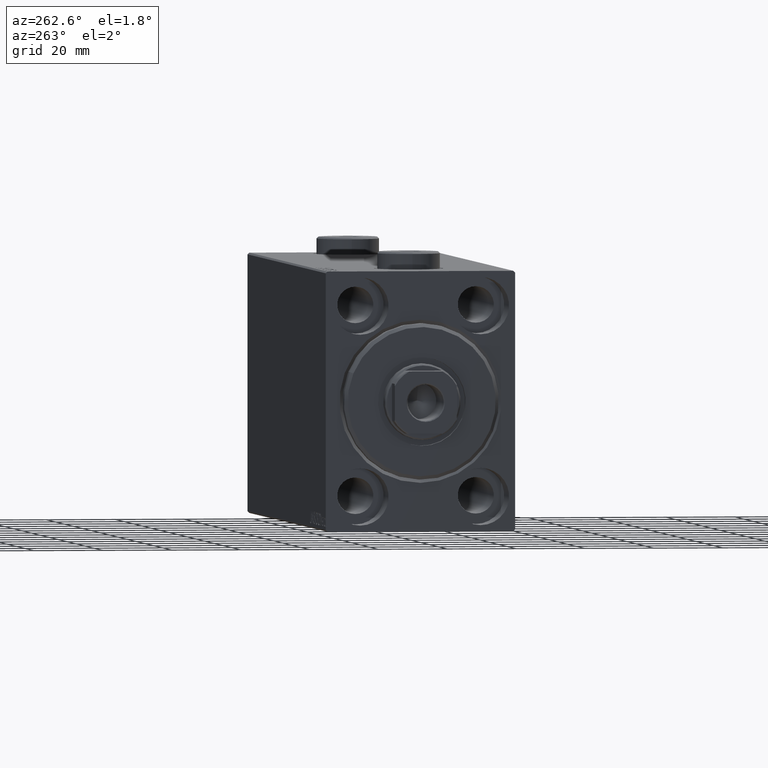
[diagram: clean part render]
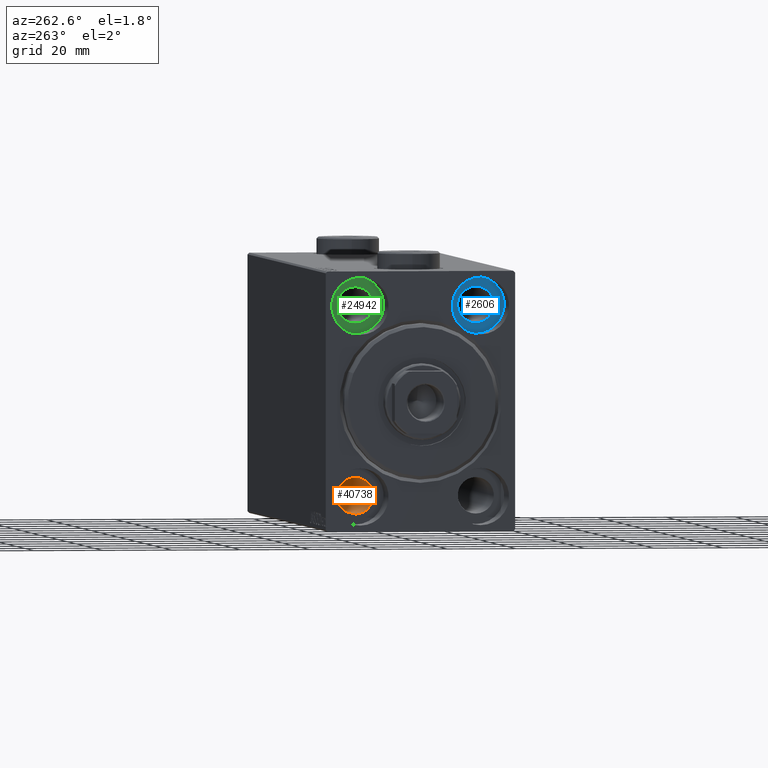
[diagram: same view with three faces highlighted in distinct colors, each labeled with its STEP entity id]
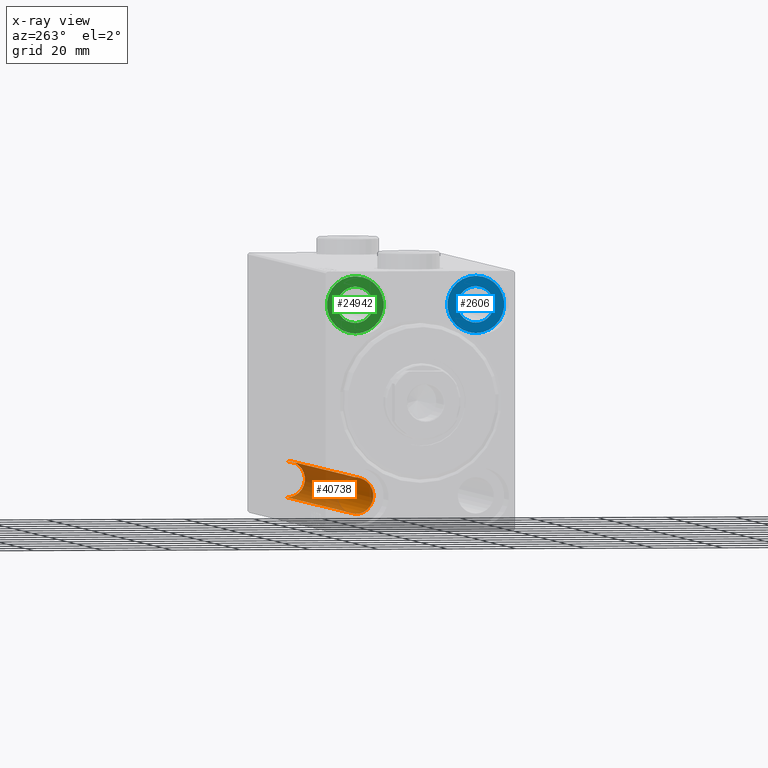
[diagram: x-ray of the same camera — body ghosted, the three highlighted faces saturated]
A machine part, auxiliary view with three faces highlighted in distinct colors.
The next image is the same camera in x-ray (body ghosted, the three faces saturated) — at least one of them is partly hidden behind the body in this view.
Their STEP definitions:

[orange] entity #40738 — the highlighted cylindrical surface (edge-blend (fillet) strip) has radius 5.25 mm, axis along (-1, -0, -0).
#4 = DIRECTION ( 'NONE',  ( -1.000000000000000000, -0.000000000000000000, -0.000000000000000000 ) ) ;
#726 = CARTESIAN_POINT ( 'NONE',  ( 11.00000000000001066, 17.49999999999999645, -22.25000000000000355 ) ) ;
#1457 = LINE ( 'NONE', #38930, #37201 ) ;
#2644 = CARTESIAN_POINT ( 'NONE',  ( 11.00000000000001066, 17.49999999999999645, -32.75000000000000000 ) ) ;
#3900 = ORIENTED_EDGE ( 'NONE', *, *, #29488, .F. ) ;
#6885 = DIRECTION ( 'NONE',  ( 0.000000000000000000, 0.000000000000000000, -1.000000000000000000 ) ) ;
#7633 = DIRECTION ( 'NONE',  ( -1.000000000000000000, -0.000000000000000000, -0.000000000000000000 ) ) ;
#8367 = DIRECTION ( 'NONE',  ( -1.000000000000000000, -0.000000000000000000, -0.000000000000000000 ) ) ;
#8910 = EDGE_CURVE ( 'NONE', #36445, #21088, #41424, .T. ) ;
#9983 = EDGE_CURVE ( 'NONE', #36445, #14713, #42994, .T. ) ;
#11016 = CARTESIAN_POINT ( 'NONE',  ( 11.00000000000001066, 17.49999999999999645, -27.50000000000000355 ) ) ;
#12563 = DIRECTION ( 'NONE',  ( 0.000000000000000000, 0.000000000000000000, 1.000000000000000000 ) ) ;
#12732 = CYLINDRICAL_SURFACE ( 'NONE', #44786, 5.250000000000000888 ) ;
#14713 = VERTEX_POINT ( 'NONE', #23112 ) ;
#15472 = DIRECTION ( 'NONE',  ( 0.000000000000000000, 0.000000000000000000, 1.000000000000000000 ) ) ;
#18954 = DIRECTION ( 'NONE',  ( -1.000000000000000000, 0.000000000000000000, 0.000000000000000000 ) ) ;
#19322 = ORIENTED_EDGE ( 'NONE', *, *, #9983, .F. ) ;
#19414 = CARTESIAN_POINT ( 'NONE',  ( 163.9999999999999716, 17.49999999999999645, -32.75000000000000000 ) ) ;
#21088 = VERTEX_POINT ( 'NONE', #2644 ) ;
#21095 = AXIS2_PLACEMENT_3D ( 'NONE', #21488, #4, #6885 ) ;
#21488 = CARTESIAN_POINT ( 'NONE',  ( 163.9999999999999716, 17.49999999999999645, -27.50000000000000355 ) ) ;
#21887 = CIRCLE ( 'NONE', #37208, 5.250000000000000888 ) ;
#23112 = CARTESIAN_POINT ( 'NONE',  ( 163.9999999999999716, 17.49999999999999645, -22.25000000000000355 ) ) ;
#24728 = VECTOR ( 'NONE', #38002, 1000.000000000000000 ) ;
#25199 = EDGE_CURVE ( 'NONE', #21088, #25770, #21887, .T. ) ;
#25490 = EDGE_LOOP ( 'NONE', ( #19322, #30821, #35459, #3900 ) ) ;
#25770 = VERTEX_POINT ( 'NONE', #726 ) ;
#26666 = CARTESIAN_POINT ( 'NONE',  ( 175.0000000000000000, 17.49999999999999645, -27.50000000000000355 ) ) ;
#29403 = FACE_OUTER_BOUND ( 'NONE', #25490, .T. ) ;
#29488 = EDGE_CURVE ( 'NONE', #14713, #25770, #1457, .T. ) ;
#30821 = ORIENTED_EDGE ( 'NONE', *, *, #8910, .T. ) ;
#33277 = CARTESIAN_POINT ( 'NONE',  ( 175.0000000000000000, 17.49999999999999645, -32.75000000000000000 ) ) ;
#35459 = ORIENTED_EDGE ( 'NONE', *, *, #25199, .T. ) ;
#36445 = VERTEX_POINT ( 'NONE', #19414 ) ;
#37201 = VECTOR ( 'NONE', #7633, 1000.000000000000000 ) ;
#37208 = AXIS2_PLACEMENT_3D ( 'NONE', #11016, #18954, #12563 ) ;
#38002 = DIRECTION ( 'NONE',  ( -1.000000000000000000, -0.000000000000000000, -0.000000000000000000 ) ) ;
#38930 = CARTESIAN_POINT ( 'NONE',  ( 175.0000000000000000, 17.49999999999999645, -22.25000000000000355 ) ) ;
#40738 = ADVANCED_FACE ( 'NONE', ( #29403 ), #12732, .F. ) ;
#41424 = LINE ( 'NONE', #33277, #24728 ) ;
#42994 = CIRCLE ( 'NONE', #21095, 5.249999999999997335 ) ;
#44786 = AXIS2_PLACEMENT_3D ( 'NONE', #26666, #8367, #15472 ) ;

[blue] entity #2606 — the highlighted planar face has unit normal (-1, 0, 0).
#391 = VERTEX_POINT ( 'NONE', #3207 ) ;
#1510 = DIRECTION ( 'NONE',  ( 0.000000000000000000, 0.000000000000000000, 1.000000000000000000 ) ) ;
#2510 = VERTEX_POINT ( 'NONE', #14014 ) ;
#2606 = ADVANCED_FACE ( 'NONE', ( #36369, #25194 ), #43001, .T. ) ;
#2971 = ORIENTED_EDGE ( 'NONE', *, *, #13760, .T. ) ;
#3207 = CARTESIAN_POINT ( 'NONE',  ( 11.00000000000001066, -17.49999999999999645, 22.25000000000000000 ) ) ;
#4398 = CARTESIAN_POINT ( 'NONE',  ( 11.00000000000000000, 0.000000000000000000, 0.000000000000000000 ) ) ;
#6051 = AXIS2_PLACEMENT_3D ( 'NONE', #34506, #38824, #10522 ) ;
#6069 = DIRECTION ( 'NONE',  ( 0.000000000000000000, 0.000000000000000000, 1.000000000000000000 ) ) ;
#7545 = EDGE_CURVE ( 'NONE', #36222, #2510, #10184, .T. ) ;
#8007 = ORIENTED_EDGE ( 'NONE', *, *, #28384, .F. ) ;
#10184 = CIRCLE ( 'NONE', #13845, 8.249999999999992895 ) ;
#10522 = DIRECTION ( 'NONE',  ( 0.000000000000000000, 0.000000000000000000, 1.000000000000000000 ) ) ;
#13760 = EDGE_CURVE ( 'NONE', #2510, #36222, #15383, .T. ) ;
#13845 = AXIS2_PLACEMENT_3D ( 'NONE', #18883, #29840, #1510 ) ;
#14014 = CARTESIAN_POINT ( 'NONE',  ( 11.00000000000000000, -17.49999999999999645, 35.74999999999999289 ) ) ;
#14049 = CARTESIAN_POINT ( 'NONE',  ( 11.00000000000001066, -17.49999999999999645, 27.49999999999999645 ) ) ;
#15383 = CIRCLE ( 'NONE', #20468, 8.249999999999992895 ) ;
#15646 = CIRCLE ( 'NONE', #6051, 5.249999999999997335 ) ;
#15721 = ORIENTED_EDGE ( 'NONE', *, *, #7545, .T. ) ;
#16732 = EDGE_LOOP ( 'NONE', ( #2971, #15721 ) ) ;
#16805 = DIRECTION ( 'NONE',  ( -1.000000000000000000, 0.000000000000000000, 0.000000000000000000 ) ) ;
#17294 = CARTESIAN_POINT ( 'NONE',  ( 11.00000000000001066, -17.49999999999999645, 32.74999999999999289 ) ) ;
#18883 = CARTESIAN_POINT ( 'NONE',  ( 11.00000000000000000, -17.49999999999999645, 27.49999999999999645 ) ) ;
#19766 = ORIENTED_EDGE ( 'NONE', *, *, #24071, .F. ) ;
#20449 = DIRECTION ( 'NONE',  ( -1.000000000000000000, 0.000000000000000000, 0.000000000000000000 ) ) ;
#20468 = AXIS2_PLACEMENT_3D ( 'NONE', #24323, #20449, #6069 ) ;
#22438 = DIRECTION ( 'NONE',  ( 0.000000000000000000, 0.000000000000000000, 1.000000000000000000 ) ) ;
#23886 = DIRECTION ( 'NONE',  ( 0.000000000000000000, 0.000000000000000000, 1.000000000000000000 ) ) ;
#23919 = EDGE_LOOP ( 'NONE', ( #19766, #8007 ) ) ;
#24071 = EDGE_CURVE ( 'NONE', #33183, #391, #15646, .T. ) ;
#24323 = CARTESIAN_POINT ( 'NONE',  ( 11.00000000000000000, -17.49999999999999645, 27.49999999999999645 ) ) ;
#25194 = FACE_OUTER_BOUND ( 'NONE', #16732, .T. ) ;
#27573 = AXIS2_PLACEMENT_3D ( 'NONE', #4398, #39581, #22438 ) ;
#28384 = EDGE_CURVE ( 'NONE', #391, #33183, #29132, .T. ) ;
#29132 = CIRCLE ( 'NONE', #35677, 5.249999999999997335 ) ;
#29840 = DIRECTION ( 'NONE',  ( -1.000000000000000000, 0.000000000000000000, 0.000000000000000000 ) ) ;
#33183 = VERTEX_POINT ( 'NONE', #17294 ) ;
#34506 = CARTESIAN_POINT ( 'NONE',  ( 11.00000000000001066, -17.49999999999999645, 27.49999999999999645 ) ) ;
#35677 = AXIS2_PLACEMENT_3D ( 'NONE', #14049, #16805, #23886 ) ;
#36222 = VERTEX_POINT ( 'NONE', #37290 ) ;
#36369 = FACE_BOUND ( 'NONE', #23919, .T. ) ;
#37290 = CARTESIAN_POINT ( 'NONE',  ( 11.00000000000000000, -17.49999999999999645, 19.25000000000000000 ) ) ;
#38824 = DIRECTION ( 'NONE',  ( -1.000000000000000000, 0.000000000000000000, 0.000000000000000000 ) ) ;
#39581 = DIRECTION ( 'NONE',  ( -1.000000000000000000, 0.000000000000000000, 0.000000000000000000 ) ) ;
#43001 = PLANE ( 'NONE',  #27573 ) ;

[green] entity #24942 — the highlighted planar face has unit normal (-1, 0, 0).
#937 = CIRCLE ( 'NONE', #17712, 5.249999999999997335 ) ;
#3109 = CARTESIAN_POINT ( 'NONE',  ( 11.00000000000000000, 17.50000000000000355, 19.25000000000000000 ) ) ;
#4706 = CIRCLE ( 'NONE', #10539, 8.249999999999992895 ) ;
#5259 = ORIENTED_EDGE ( 'NONE', *, *, #42371, .T. ) ;
#6465 = CARTESIAN_POINT ( 'NONE',  ( 11.00000000000000000, 0.000000000000000000, 0.000000000000000000 ) ) ;
#6694 = DIRECTION ( 'NONE',  ( 0.000000000000000000, 0.000000000000000000, 1.000000000000000000 ) ) ;
#9589 = CARTESIAN_POINT ( 'NONE',  ( 11.00000000000000000, 17.50000000000000355, 27.49999999999999645 ) ) ;
#10539 = AXIS2_PLACEMENT_3D ( 'NONE', #28571, #35634, #42950 ) ;
#11342 = EDGE_LOOP ( 'NONE', ( #36490, #5259 ) ) ;
#12761 = CARTESIAN_POINT ( 'NONE',  ( 11.00000000000001066, 17.50000000000000355, 27.49999999999999645 ) ) ;
#12832 = VERTEX_POINT ( 'NONE', #44487 ) ;
#13393 = DIRECTION ( 'NONE',  ( 0.000000000000000000, 0.000000000000000000, 1.000000000000000000 ) ) ;
#13880 = AXIS2_PLACEMENT_3D ( 'NONE', #6465, #30694, #6694 ) ;
#14006 = FACE_OUTER_BOUND ( 'NONE', #11342, .T. ) ;
#14131 = CIRCLE ( 'NONE', #44083, 5.249999999999997335 ) ;
#14199 = AXIS2_PLACEMENT_3D ( 'NONE', #9589, #15995, #23532 ) ;
#15995 = DIRECTION ( 'NONE',  ( -1.000000000000000000, 0.000000000000000000, 0.000000000000000000 ) ) ;
#16170 = VERTEX_POINT ( 'NONE', #3109 ) ;
#16239 = ORIENTED_EDGE ( 'NONE', *, *, #38088, .F. ) ;
#16340 = VERTEX_POINT ( 'NONE', #19307 ) ;
#16564 = VERTEX_POINT ( 'NONE', #37676 ) ;
#17712 = AXIS2_PLACEMENT_3D ( 'NONE', #12761, #26693, #40613 ) ;
#19307 = CARTESIAN_POINT ( 'NONE',  ( 11.00000000000001066, 17.50000000000000355, 22.25000000000000000 ) ) ;
#20414 = PLANE ( 'NONE',  #13880 ) ;
#23532 = DIRECTION ( 'NONE',  ( 0.000000000000000000, 0.000000000000000000, 1.000000000000000000 ) ) ;
#24942 = ADVANCED_FACE ( 'NONE', ( #44855, #14006 ), #20414, .T. ) ;
#26693 = DIRECTION ( 'NONE',  ( -1.000000000000000000, 0.000000000000000000, 0.000000000000000000 ) ) ;
#28571 = CARTESIAN_POINT ( 'NONE',  ( 11.00000000000000000, 17.50000000000000355, 27.49999999999999645 ) ) ;
#30694 = DIRECTION ( 'NONE',  ( -1.000000000000000000, 0.000000000000000000, 0.000000000000000000 ) ) ;
#33896 = CIRCLE ( 'NONE', #14199, 8.249999999999992895 ) ;
#35634 = DIRECTION ( 'NONE',  ( -1.000000000000000000, 0.000000000000000000, 0.000000000000000000 ) ) ;
#36342 = ORIENTED_EDGE ( 'NONE', *, *, #43895, .F. ) ;
#36490 = ORIENTED_EDGE ( 'NONE', *, *, #42305, .T. ) ;
#37676 = CARTESIAN_POINT ( 'NONE',  ( 11.00000000000001066, 17.50000000000000355, 32.74999999999999289 ) ) ;
#37825 = DIRECTION ( 'NONE',  ( -1.000000000000000000, 0.000000000000000000, 0.000000000000000000 ) ) ;
#38088 = EDGE_CURVE ( 'NONE', #16340, #16564, #937, .T. ) ;
#40613 = DIRECTION ( 'NONE',  ( 0.000000000000000000, 0.000000000000000000, 1.000000000000000000 ) ) ;
#42305 = EDGE_CURVE ( 'NONE', #12832, #16170, #4706, .T. ) ;
#42371 = EDGE_CURVE ( 'NONE', #16170, #12832, #33896, .T. ) ;
#42950 = DIRECTION ( 'NONE',  ( 0.000000000000000000, 0.000000000000000000, 1.000000000000000000 ) ) ;
#43204 = EDGE_LOOP ( 'NONE', ( #36342, #16239 ) ) ;
#43895 = EDGE_CURVE ( 'NONE', #16564, #16340, #14131, .T. ) ;
#44083 = AXIS2_PLACEMENT_3D ( 'NONE', #44906, #37825, #13393 ) ;
#44487 = CARTESIAN_POINT ( 'NONE',  ( 11.00000000000000000, 17.50000000000000355, 35.74999999999999289 ) ) ;
#44855 = FACE_BOUND ( 'NONE', #43204, .T. ) ;
#44906 = CARTESIAN_POINT ( 'NONE',  ( 11.00000000000001066, 17.50000000000000355, 27.49999999999999645 ) ) ;